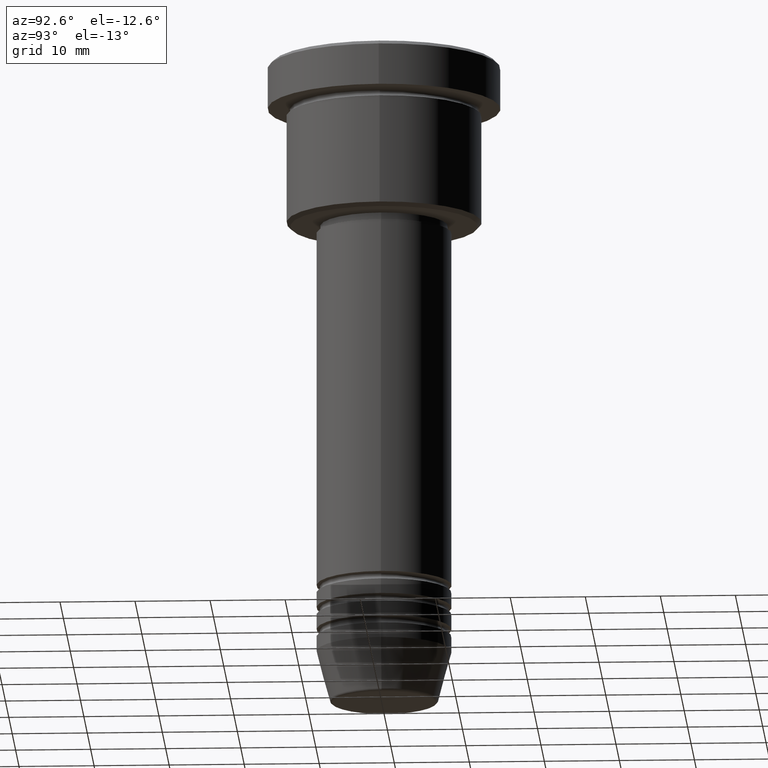
[diagram: clean part render]
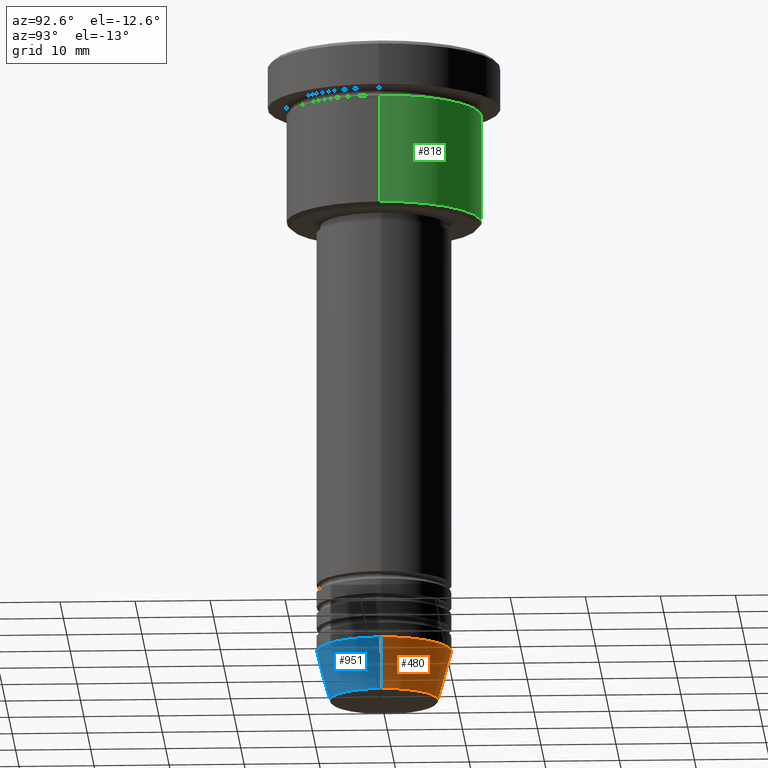
[diagram: same view with three faces highlighted in distinct colors, each labeled with its STEP entity id]
A machine part, auxiliary view with three faces highlighted in distinct colors.
Their STEP definitions:

[orange] entity #480 — the highlighted conical surface has half-angle 15 deg.
#52 = LINE ( 'NONE', #603, #906 ) ;
#97 = CARTESIAN_POINT ( 'NONE',  ( 0.000000000000000000, 0.000000000000000000, -86.62940952255125637 ) ) ;
#118 = DIRECTION ( 'NONE',  ( 1.000000000000000000, 0.000000000000000000, 0.000000000000000000 ) ) ;
#129 = DIRECTION ( 'NONE',  ( -0.000000000000000000, -0.000000000000000000, 1.000000000000000000 ) ) ;
#183 = CIRCLE ( 'NONE', #1001, 9.000000000000000000 ) ;
#189 = EDGE_CURVE ( 'NONE', #683, #794, #52, .T. ) ;
#294 = FACE_OUTER_BOUND ( 'NONE', #1025, .T. ) ;
#299 = CARTESIAN_POINT ( 'NONE',  ( 0.000000000000000000, 0.000000000000000000, -79.99999999999998579 ) ) ;
#332 = VERTEX_POINT ( 'NONE', #417 ) ;
#343 = ORIENTED_EDGE ( 'NONE', *, *, #1104, .F. ) ;
#417 = CARTESIAN_POINT ( 'NONE',  ( -9.000000000000000000, 1.102182119232617714E-15, -79.99999999999998579 ) ) ;
#452 = CARTESIAN_POINT ( 'NONE',  ( 9.000000000000000000, 0.000000000000000000, -79.99999999999998579 ) ) ;
#463 = DIRECTION ( 'NONE',  ( -0.000000000000000000, -0.000000000000000000, 1.000000000000000000 ) ) ;
#464 = CARTESIAN_POINT ( 'NONE',  ( -9.000000000000000000, 1.102182119232617714E-15, -79.99999999999998579 ) ) ;
#480 = ADVANCED_FACE ( 'NONE', ( #294 ), #751, .T. ) ;
#493 = DIRECTION ( 'NONE',  ( 1.000000000000000000, 0.000000000000000000, 0.000000000000000000 ) ) ;
#510 = EDGE_CURVE ( 'NONE', #967, #332, #1087, .T. ) ;
#585 = DIRECTION ( 'NONE',  ( -0.000000000000000000, -0.000000000000000000, 1.000000000000000000 ) ) ;
#603 = CARTESIAN_POINT ( 'NONE',  ( 9.000000000000000000, 0.000000000000000000, -79.99999999999998579 ) ) ;
#644 = DIRECTION ( 'NONE',  ( -0.2588190451025213501, 3.169619151431772337E-17, 0.9659258262890680902 ) ) ;
#659 = AXIS2_PLACEMENT_3D ( 'NONE', #299, #585, #887 ) ;
#683 = VERTEX_POINT ( 'NONE', #847 ) ;
#733 = CARTESIAN_POINT ( 'NONE',  ( -7.223655072137189492, 9.934123627281765110E-16, -86.62940952255125637 ) ) ;
#751 = CONICAL_SURFACE ( 'NONE', #659, 9.000000000000000000, 0.2617993877991500740 ) ;
#754 = ORIENTED_EDGE ( 'NONE', *, *, #510, .T. ) ;
#794 = VERTEX_POINT ( 'NONE', #452 ) ;
#847 = CARTESIAN_POINT ( 'NONE',  ( 7.223655072137188604, 0.000000000000000000, -86.62940952255125637 ) ) ;
#887 = DIRECTION ( 'NONE',  ( 1.000000000000000000, 0.000000000000000000, 0.000000000000000000 ) ) ;
#906 = VECTOR ( 'NONE', #1052, 1000.000000000000000 ) ;
#907 = EDGE_CURVE ( 'NONE', #683, #967, #912, .T. ) ;
#912 = CIRCLE ( 'NONE', #968, 7.223655072137188604 ) ;
#945 = CARTESIAN_POINT ( 'NONE',  ( 0.000000000000000000, 0.000000000000000000, -79.99999999999998579 ) ) ;
#967 = VERTEX_POINT ( 'NONE', #733 ) ;
#968 = AXIS2_PLACEMENT_3D ( 'NONE', #97, #463, #118 ) ;
#988 = ORIENTED_EDGE ( 'NONE', *, *, #189, .F. ) ;
#1001 = AXIS2_PLACEMENT_3D ( 'NONE', #945, #129, #493 ) ;
#1023 = ORIENTED_EDGE ( 'NONE', *, *, #907, .T. ) ;
#1025 = EDGE_LOOP ( 'NONE', ( #1023, #754, #343, #988 ) ) ;
#1052 = DIRECTION ( 'NONE',  ( 0.2588190451025213501, 0.000000000000000000, 0.9659258262890680902 ) ) ;
#1053 = VECTOR ( 'NONE', #644, 1000.000000000000000 ) ;
#1087 = LINE ( 'NONE', #464, #1053 ) ;
#1104 = EDGE_CURVE ( 'NONE', #794, #332, #183, .T. ) ;

[blue] entity #951 — the highlighted conical surface has half-angle 15 deg.
#52 = LINE ( 'NONE', #603, #906 ) ;
#150 = ORIENTED_EDGE ( 'NONE', *, *, #762, .F. ) ;
#189 = EDGE_CURVE ( 'NONE', #683, #794, #52, .T. ) ;
#267 = CIRCLE ( 'NONE', #928, 9.000000000000000000 ) ;
#332 = VERTEX_POINT ( 'NONE', #417 ) ;
#358 = DIRECTION ( 'NONE',  ( -0.000000000000000000, -0.000000000000000000, 1.000000000000000000 ) ) ;
#362 = AXIS2_PLACEMENT_3D ( 'NONE', #900, #617, #435 ) ;
#417 = CARTESIAN_POINT ( 'NONE',  ( -9.000000000000000000, 1.102182119232617714E-15, -79.99999999999998579 ) ) ;
#435 = DIRECTION ( 'NONE',  ( 1.000000000000000000, 0.000000000000000000, 0.000000000000000000 ) ) ;
#450 = DIRECTION ( 'NONE',  ( 1.000000000000000000, 0.000000000000000000, 0.000000000000000000 ) ) ;
#452 = CARTESIAN_POINT ( 'NONE',  ( 9.000000000000000000, 0.000000000000000000, -79.99999999999998579 ) ) ;
#457 = DIRECTION ( 'NONE',  ( 1.000000000000000000, 0.000000000000000000, 0.000000000000000000 ) ) ;
#464 = CARTESIAN_POINT ( 'NONE',  ( -9.000000000000000000, 1.102182119232617714E-15, -79.99999999999998579 ) ) ;
#510 = EDGE_CURVE ( 'NONE', #967, #332, #1087, .T. ) ;
#542 = EDGE_CURVE ( 'NONE', #967, #683, #715, .T. ) ;
#603 = CARTESIAN_POINT ( 'NONE',  ( 9.000000000000000000, 0.000000000000000000, -79.99999999999998579 ) ) ;
#617 = DIRECTION ( 'NONE',  ( -0.000000000000000000, -0.000000000000000000, 1.000000000000000000 ) ) ;
#644 = DIRECTION ( 'NONE',  ( -0.2588190451025213501, 3.169619151431772337E-17, 0.9659258262890680902 ) ) ;
#647 = AXIS2_PLACEMENT_3D ( 'NONE', #655, #358, #450 ) ;
#655 = CARTESIAN_POINT ( 'NONE',  ( 0.000000000000000000, 0.000000000000000000, -79.99999999999998579 ) ) ;
#683 = VERTEX_POINT ( 'NONE', #847 ) ;
#715 = CIRCLE ( 'NONE', #362, 7.223655072137188604 ) ;
#728 = CARTESIAN_POINT ( 'NONE',  ( 0.000000000000000000, 0.000000000000000000, -79.99999999999998579 ) ) ;
#733 = CARTESIAN_POINT ( 'NONE',  ( -7.223655072137189492, 9.934123627281765110E-16, -86.62940952255125637 ) ) ;
#734 = DIRECTION ( 'NONE',  ( -0.000000000000000000, -0.000000000000000000, 1.000000000000000000 ) ) ;
#762 = EDGE_CURVE ( 'NONE', #332, #794, #267, .T. ) ;
#794 = VERTEX_POINT ( 'NONE', #452 ) ;
#847 = CARTESIAN_POINT ( 'NONE',  ( 7.223655072137188604, 0.000000000000000000, -86.62940952255125637 ) ) ;
#900 = CARTESIAN_POINT ( 'NONE',  ( 0.000000000000000000, 0.000000000000000000, -86.62940952255125637 ) ) ;
#906 = VECTOR ( 'NONE', #1052, 1000.000000000000000 ) ;
#913 = FACE_OUTER_BOUND ( 'NONE', #975, .T. ) ;
#928 = AXIS2_PLACEMENT_3D ( 'NONE', #728, #734, #457 ) ;
#930 = CONICAL_SURFACE ( 'NONE', #647, 9.000000000000000000, 0.2617993877991500740 ) ;
#951 = ADVANCED_FACE ( 'NONE', ( #913 ), #930, .T. ) ;
#967 = VERTEX_POINT ( 'NONE', #733 ) ;
#975 = EDGE_LOOP ( 'NONE', ( #1031, #1137, #1100, #150 ) ) ;
#1031 = ORIENTED_EDGE ( 'NONE', *, *, #510, .F. ) ;
#1052 = DIRECTION ( 'NONE',  ( 0.2588190451025213501, 0.000000000000000000, 0.9659258262890680902 ) ) ;
#1053 = VECTOR ( 'NONE', #644, 1000.000000000000000 ) ;
#1087 = LINE ( 'NONE', #464, #1053 ) ;
#1100 = ORIENTED_EDGE ( 'NONE', *, *, #189, .T. ) ;
#1137 = ORIENTED_EDGE ( 'NONE', *, *, #542, .T. ) ;

[green] entity #818 — the highlighted cylindrical surface (partial cylindrical patch) has radius 13 mm, axis along (-0, -0, 1).
#3 = DIRECTION ( 'NONE',  ( -0.000000000000000000, -0.000000000000000000, 1.000000000000000000 ) ) ;
#6 = CARTESIAN_POINT ( 'NONE',  ( 13.00000000000000000, 0.000000000000000000, -21.49999999999999289 ) ) ;
#19 = CARTESIAN_POINT ( 'NONE',  ( 0.000000000000000000, 0.000000000000000000, 0.000000000000000000 ) ) ;
#30 = DIRECTION ( 'NONE',  ( -0.000000000000000000, -0.000000000000000000, 1.000000000000000000 ) ) ;
#47 = DIRECTION ( 'NONE',  ( -0.000000000000000000, -0.000000000000000000, 1.000000000000000000 ) ) ;
#100 = LINE ( 'NONE', #378, #721 ) ;
#157 = CARTESIAN_POINT ( 'NONE',  ( -13.00000000000000000, 1.592040838891559095E-15, -21.49999999999999289 ) ) ;
#191 = ORIENTED_EDGE ( 'NONE', *, *, #873, .F. ) ;
#197 = CARTESIAN_POINT ( 'NONE',  ( 0.000000000000000000, 0.000000000000000000, -21.49999999999999289 ) ) ;
#200 = VERTEX_POINT ( 'NONE', #157 ) ;
#208 = CARTESIAN_POINT ( 'NONE',  ( -13.00000000000000000, 1.592040838891559095E-15, 0.000000000000000000 ) ) ;
#248 = VERTEX_POINT ( 'NONE', #6 ) ;
#336 = ORIENTED_EDGE ( 'NONE', *, *, #696, .F. ) ;
#366 = CARTESIAN_POINT ( 'NONE',  ( 13.00000000000000000, 0.000000000000000000, -6.999999999999995559 ) ) ;
#378 = CARTESIAN_POINT ( 'NONE',  ( 13.00000000000000000, 0.000000000000000000, 0.000000000000000000 ) ) ;
#391 = DIRECTION ( 'NONE',  ( 1.000000000000000000, 0.000000000000000000, 0.000000000000000000 ) ) ;
#444 = CIRCLE ( 'NONE', #1116, 13.00000000000000000 ) ;
#472 = DIRECTION ( 'NONE',  ( -1.000000000000000000, 0.000000000000000000, 0.000000000000000000 ) ) ;
#506 = CIRCLE ( 'NONE', #589, 13.00000000000000000 ) ;
#548 = AXIS2_PLACEMENT_3D ( 'NONE', #19, #47, #712 ) ;
#565 = DIRECTION ( 'NONE',  ( -0.000000000000000000, -0.000000000000000000, 1.000000000000000000 ) ) ;
#588 = ORIENTED_EDGE ( 'NONE', *, *, #691, .T. ) ;
#589 = AXIS2_PLACEMENT_3D ( 'NONE', #854, #30, #391 ) ;
#614 = CARTESIAN_POINT ( 'NONE',  ( -13.00000000000000000, 1.592040838891559095E-15, -6.999999999999995559 ) ) ;
#691 = EDGE_CURVE ( 'NONE', #200, #1140, #1028, .T. ) ;
#696 = EDGE_CURVE ( 'NONE', #909, #1140, #506, .T. ) ;
#712 = DIRECTION ( 'NONE',  ( 1.000000000000000000, 0.000000000000000000, 0.000000000000000000 ) ) ;
#721 = VECTOR ( 'NONE', #3, 1000.000000000000000 ) ;
#761 = FACE_OUTER_BOUND ( 'NONE', #870, .T. ) ;
#818 = ADVANCED_FACE ( 'NONE', ( #761 ), #932, .T. ) ;
#821 = VECTOR ( 'NONE', #939, 1000.000000000000000 ) ;
#854 = CARTESIAN_POINT ( 'NONE',  ( 0.000000000000000000, 0.000000000000000000, -6.999999999999995559 ) ) ;
#870 = EDGE_LOOP ( 'NONE', ( #1081, #588, #336, #191 ) ) ;
#873 = EDGE_CURVE ( 'NONE', #248, #909, #100, .T. ) ;
#909 = VERTEX_POINT ( 'NONE', #366 ) ;
#932 = CYLINDRICAL_SURFACE ( 'NONE', #548, 13.00000000000000000 ) ;
#939 = DIRECTION ( 'NONE',  ( -0.000000000000000000, -0.000000000000000000, 1.000000000000000000 ) ) ;
#955 = EDGE_CURVE ( 'NONE', #248, #200, #444, .T. ) ;
#1028 = LINE ( 'NONE', #208, #821 ) ;
#1081 = ORIENTED_EDGE ( 'NONE', *, *, #955, .T. ) ;
#1116 = AXIS2_PLACEMENT_3D ( 'NONE', #197, #565, #472 ) ;
#1140 = VERTEX_POINT ( 'NONE', #614 ) ;